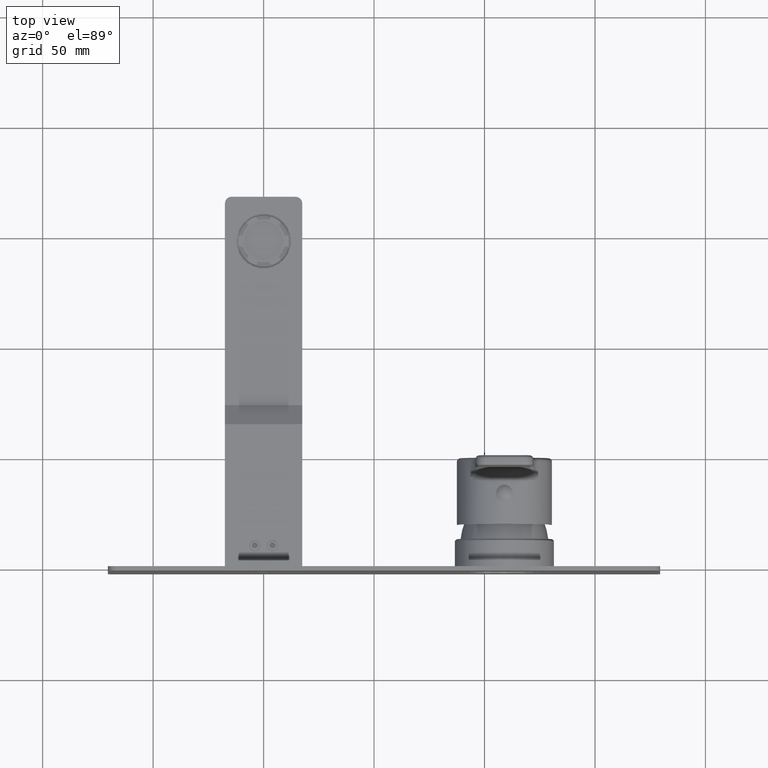
[diagram: clean part render]
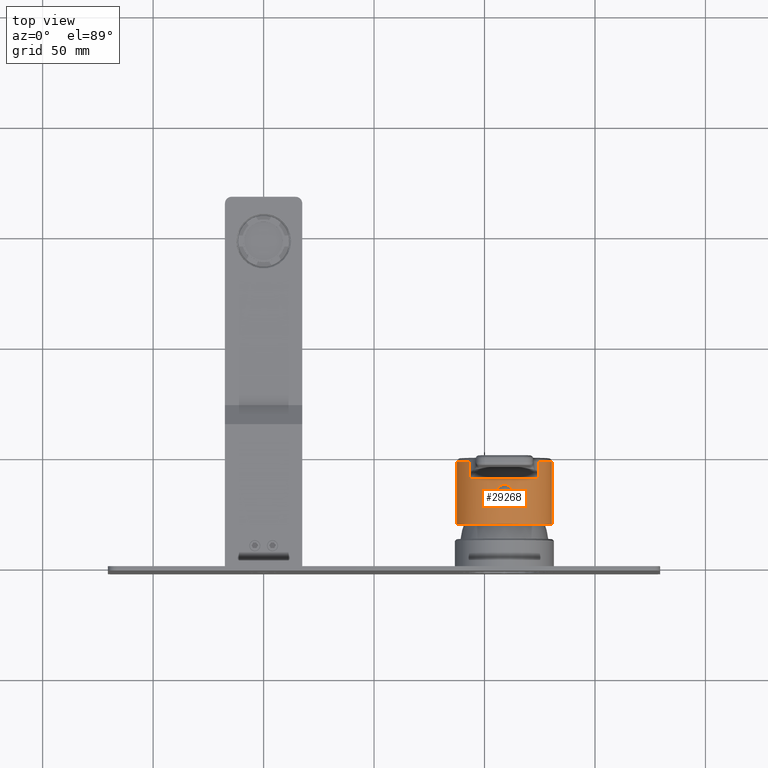
[diagram: same view with one face highlighted and labeled with its STEP entity id]
A machine part, top view. The second image highlights one B-rep face of the part: STEP entity #29268.
In plain terms, the highlighted cylindrical surface (partial cylindrical patch) has radius 21.5 mm, axis along (0, 1, 0).
Its self-contained STEP definition (entity closure, byte-faithful):
#8854=DIRECTION('',(-4.646886367898E-6,-9.999999999778E-1,4.776823971338E-6));
#8855=VECTOR('',#8854,8.030831221984E0);
#8856=CARTESIAN_POINT('',(1.246984500160E2,9.813083122271E1,1.469042925446E1));
#8857=LINE('',#8856,#8855);
#8858=CARTESIAN_POINT('',(1.090000000003E2,9.813083117058E1,0.E0));
#8859=DIRECTION('',(0.E0,-1.E0,0.E0));
#8860=DIRECTION('',(1.E0,0.E0,0.E0));
#8861=AXIS2_PLACEMENT_3D('',#8858,#8859,#8860);
#8863=DIRECTION('',(0.E0,1.E0,-2.343800675332E-13));
#8864=VECTOR('',#8863,2.853083117058E1);
#8865=CARTESIAN_POINT('',(8.750000000033E1,6.96E1,0.E0));
#8866=LINE('',#8865,#8864);
#8867=CARTESIAN_POINT('',(1.090000000003E2,9.813083117058E1,0.E0));
#8868=DIRECTION('',(0.E0,-1.E0,0.E0));
#8869=DIRECTION('',(-7.301625092202E-1,0.E0,6.832735251195E-1));
#8870=AXIS2_PLACEMENT_3D('',#8867,#8868,#8869);
#8872=DIRECTION('',(-5.163733500362E-6,9.999999999726E-1,-5.307672915251E-6));
#8873=VECTOR('',#8872,8.030831229958E0);
#8874=CARTESIAN_POINT('',(9.330158730318E1,9.010000000100E1,1.469046761645E1));
#8875=LINE('',#8874,#8873);
#8876=CARTESIAN_POINT('',(1.115617376918E2,8.46E1,2.134683817337E1));
#8877=CARTESIAN_POINT('',(1.115434005987E2,8.464697482255E1,2.134903872514E1));
#8878=CARTESIAN_POINT('',(1.115041964920E2,8.473979312399E1,2.135369581233E1));
#8879=CARTESIAN_POINT('',(1.114376792733E2,8.487587871210E1,2.136139936400E1));
#8880=CARTESIAN_POINT('',(1.113637888691E2,8.500806697644E1,2.136971054540E1));
#8881=CARTESIAN_POINT('',(1.112826299E2,8.513615335468E1,2.137854101773E1));
#8882=CARTESIAN_POINT('',(1.111945187589E2,8.525959452368E1,2.138777466434E1));
#8883=CARTESIAN_POINT('',(1.110996991642E2,8.537804429664E1,2.139730123749E1));
#8884=CARTESIAN_POINT('',(1.109984348707E2,8.549114650083E1,2.140700624364E1));
#8885=CARTESIAN_POINT('',(1.108911305985E2,8.559844989750E1,2.141676229496E1));
#8886=CARTESIAN_POINT('',(1.107780289075E2,8.569971213063E1,2.142645832134E1));
#8887=CARTESIAN_POINT('',(1.106595811658E2,8.579452877087E1,2.143596738617E1));
#8888=CARTESIAN_POINT('',(1.105361429784E2,8.588263677772E1,2.144517591360E1));
#8889=CARTESIAN_POINT('',(1.104080603943E2,8.596379269638E1,2.145397488518E1));
#8890=CARTESIAN_POINT('',(1.102758754006E2,8.603768092309E1,2.146224983611E1));
#8891=CARTESIAN_POINT('',(1.101397927859E2,8.610419661959E1,2.146991410492E1));
#8892=CARTESIAN_POINT('',(1.100469742967E2,8.614340080380E1,2.147454437680E1));
#8893=CARTESIAN_POINT('',(1.100000000003E2,8.616173769149E1,2.147673159491E1));
#8895=CARTESIAN_POINT('',(1.100000000003E2,8.616173769149E1,2.147673159491E1));
#8896=CARTESIAN_POINT('',(1.099545182989E2,8.617949192980E1,2.147884931479E1));
#8897=CARTESIAN_POINT('',(1.098627476228E2,8.621252975851E1,2.148283320158E1));
#8898=CARTESIAN_POINT('',(1.097223954497E2,8.625477000713E1,2.148801574560E1));
#8899=CARTESIAN_POINT('',(1.095801909599E2,8.628942243963E1,2.149232850949E1));
#8900=CARTESIAN_POINT('',(1.094367079627E2,8.631641260422E1,2.149572572083E1));
#8901=CARTESIAN_POINT('',(1.092917281829E2,8.633578787100E1,2.149818502795E1));
#8902=CARTESIAN_POINT('',(1.091459022404E2,8.634742129933E1,2.149966993773E1));
#8903=CARTESIAN_POINT('',(1.090486664802E2,8.635E1,2.15E1));
#8904=CARTESIAN_POINT('',(1.090000000003E2,8.635E1,2.15E1));
#8906=CARTESIAN_POINT('',(1.090000000003E2,8.635E1,2.15E1));
#8907=CARTESIAN_POINT('',(1.089513347756E2,8.635E1,2.15E1));
#8908=CARTESIAN_POINT('',(1.088541013656E2,8.634742150960E1,2.149966996459E1));
#8909=CARTESIAN_POINT('',(1.087082732555E2,8.633578798189E1,2.149818504210E1));
#8910=CARTESIAN_POINT('',(1.085633012518E2,8.631641393059E1,2.149572588921E1));
#8911=CARTESIAN_POINT('',(1.084198197004E2,8.628942489237E1,2.149232881578E1));
#8912=CARTESIAN_POINT('',(1.082776034727E2,8.625476982444E1,2.148801572223E1));
#8913=CARTESIAN_POINT('',(1.081372533475E2,8.621253002740E1,2.148283323462E1));
#8914=CARTESIAN_POINT('',(1.080454817698E2,8.617949195637E1,2.147884931796E1));
#8915=CARTESIAN_POINT('',(1.080000000003E2,8.616173769149E1,2.147673159491E1));
#8917=CARTESIAN_POINT('',(1.080000000003E2,8.616173769149E1,2.147673159491E1));
#8918=CARTESIAN_POINT('',(1.079530257038E2,8.614340080372E1,2.147454437679E1));
#8919=CARTESIAN_POINT('',(1.078602072143E2,8.610419661940E1,2.146991410490E1));
#8920=CARTESIAN_POINT('',(1.077241245997E2,8.603768092291E1,2.146224983609E1));
#8921=CARTESIAN_POINT('',(1.075919396064E2,8.596379269639E1,2.145397488518E1));
#8922=CARTESIAN_POINT('',(1.074638570216E2,8.588263677730E1,2.144517591356E1));
#8923=CARTESIAN_POINT('',(1.073404188348E2,8.579452877080E1,2.143596738616E1));
#8924=CARTESIAN_POINT('',(1.072219710928E2,8.569971213026E1,2.142645832130E1));
#8925=CARTESIAN_POINT('',(1.071088694019E2,8.559844989725E1,2.141676229494E1));
#8926=CARTESIAN_POINT('',(1.070015651298E2,8.549114650071E1,2.140700624363E1));
#8927=CARTESIAN_POINT('',(1.069003008360E2,8.537804429603E1,2.139730123744E1));
#8928=CARTESIAN_POINT('',(1.068054812415E2,8.525959452332E1,2.138777466431E1));
#8929=CARTESIAN_POINT('',(1.067173701003E2,8.513615335414E1,2.137854101769E1));
#8930=CARTESIAN_POINT('',(1.066362111312E2,8.500806697581E1,2.136971054536E1));
#8931=CARTESIAN_POINT('',(1.065623207271E2,8.487587871157E1,2.136139936397E1));
#8932=CARTESIAN_POINT('',(1.064958035086E2,8.473979312378E1,2.135369581232E1));
#8933=CARTESIAN_POINT('',(1.064565994019E2,8.464697482249E1,2.134903872514E1));
#8934=CARTESIAN_POINT('',(1.064382623088E2,8.46E1,2.134683817337E1));
#8936=CARTESIAN_POINT('',(1.064382623088E2,8.46E1,2.134683817337E1));
#8937=CARTESIAN_POINT('',(1.064204857766E2,8.455446118746E1,2.134470489198E1));
#8938=CARTESIAN_POINT('',(1.063874284015E2,8.446261923476E1,2.134069303650E1));
#8939=CARTESIAN_POINT('',(1.063452334728E2,8.432239624106E1,2.133548011697E1));
#8940=CARTESIAN_POINT('',(1.063105891149E2,8.418025603203E1,2.133113658384E1));
#8941=CARTESIAN_POINT('',(1.062835600556E2,8.403655049695E1,2.132770810543E1));
#8942=CARTESIAN_POINT('',(1.062642115836E2,8.389168105626E1,2.132523246507E1));
#8943=CARTESIAN_POINT('',(1.062525854341E2,8.374603447031E1,2.132373630945E1));
#8944=CARTESIAN_POINT('',(1.062487072839E2,8.359999999811E1,2.132323580015E1));
#8945=CARTESIAN_POINT('',(1.062525854321E2,8.345396555559E1,2.132373630920E1));
#8946=CARTESIAN_POINT('',(1.062642115908E2,8.330831885657E1,2.132523246600E1));
#8947=CARTESIAN_POINT('',(1.062835600779E2,8.316344936500E1,2.132770810827E1));
#8948=CARTESIAN_POINT('',(1.063105891379E2,8.301974386442E1,2.133113658674E1));
#8949=CARTESIAN_POINT('',(1.063452334939E2,8.287760368324E1,2.133548011960E1));
#8950=CARTESIAN_POINT('',(1.063874284152E2,8.273738072613E1,2.134069303817E1));
#8951=CARTESIAN_POINT('',(1.064204857819E2,8.264553879908E1,2.134470489261E1));
#8952=CARTESIAN_POINT('',(1.064382623088E2,8.26E1,2.134683817337E1));
#8954=CARTESIAN_POINT('',(1.064382623088E2,8.26E1,2.134683817337E1));
#8955=CARTESIAN_POINT('',(1.064565994019E2,8.255302517745E1,2.134903872514E1));
#8956=CARTESIAN_POINT('',(1.064958035086E2,8.246020687601E1,2.135369581233E1));
#8957=CARTESIAN_POINT('',(1.065623207273E2,8.232412128790E1,2.136139936400E1));
#8958=CARTESIAN_POINT('',(1.066362111316E2,8.219193302356E1,2.136971054540E1));
#8959=CARTESIAN_POINT('',(1.067173701007E2,8.206384664532E1,2.137854101773E1));
#8960=CARTESIAN_POINT('',(1.068054812417E2,8.194040547632E1,2.138777466434E1));
#8961=CARTESIAN_POINT('',(1.069003008365E2,8.182195570336E1,2.139730123749E1));
#8962=CARTESIAN_POINT('',(1.070015651299E2,8.170885349917E1,2.140700624364E1));
#8963=CARTESIAN_POINT('',(1.071088694021E2,8.160155010250E1,2.141676229496E1));
#8964=CARTESIAN_POINT('',(1.072219710932E2,8.150028786937E1,2.142645832134E1));
#8965=CARTESIAN_POINT('',(1.073404188349E2,8.140547122913E1,2.143596738617E1));
#8966=CARTESIAN_POINT('',(1.074638570222E2,8.131736322228E1,2.144517591360E1));
#8967=CARTESIAN_POINT('',(1.075919396064E2,8.123620730362E1,2.145397488518E1));
#8968=CARTESIAN_POINT('',(1.077241246E2,8.116231907691E1,2.146224983611E1));
#8969=CARTESIAN_POINT('',(1.078602072148E2,8.109580338041E1,2.146991410492E1));
#8970=CARTESIAN_POINT('',(1.079530257040E2,8.105659919620E1,2.147454437680E1));
#8971=CARTESIAN_POINT('',(1.080000000003E2,8.103826230851E1,2.147673159491E1));
#8973=CARTESIAN_POINT('',(1.080000000003E2,8.103826230851E1,2.147673159491E1));
#8974=CARTESIAN_POINT('',(1.080454816899E2,8.102050807485E1,2.147884931424E1));
#8975=CARTESIAN_POINT('',(1.081372523485E2,8.098747025142E1,2.148283320037E1));
#8976=CARTESIAN_POINT('',(1.082776045206E2,8.094523000100E1,2.148801574460E1));
#8977=CARTESIAN_POINT('',(1.084198090221E2,8.091057756412E1,2.149232850902E1));
#8978=CARTESIAN_POINT('',(1.085632920359E2,8.088358739575E1,2.149572572083E1));
#8979=CARTESIAN_POINT('',(1.087082718289E2,8.086421212787E1,2.149818502809E1));
#8980=CARTESIAN_POINT('',(1.088540977564E2,8.085257870106E1,2.149966993768E1));
#8981=CARTESIAN_POINT('',(1.089513335188E2,8.085E1,2.15E1));
#8982=CARTESIAN_POINT('',(1.090000000003E2,8.085E1,2.15E1));
#8984=CARTESIAN_POINT('',(1.090000000003E2,8.085E1,2.15E1));
#8985=CARTESIAN_POINT('',(1.090486659301E2,8.085E1,2.15E1));
#8986=CARTESIAN_POINT('',(1.091459004966E2,8.085257856492E1,2.149966995505E1));
#8987=CARTESIAN_POINT('',(1.092917296094E2,8.086421231179E1,2.149818500467E1));
#8988=CARTESIAN_POINT('',(1.094367017975E2,8.088358656544E1,2.149572582648E1));
#8989=CARTESIAN_POINT('',(1.095801826439E2,8.091057562727E1,2.149232875077E1));
#8990=CARTESIAN_POINT('',(1.097223981748E2,8.094523063669E1,2.148801566532E1));
#8991=CARTESIAN_POINT('',(1.098627475169E2,8.098747027382E1,2.148283319814E1));
#8992=CARTESIAN_POINT('',(1.099545185261E2,8.102050815891E1,2.147884930421E1));
#8993=CARTESIAN_POINT('',(1.100000000003E2,8.103826230851E1,2.147673159491E1));
#8995=CARTESIAN_POINT('',(1.100000000003E2,8.103826230851E1,2.147673159491E1));
#8996=CARTESIAN_POINT('',(1.100469742969E2,8.105659919628E1,2.147454437679E1));
#8997=CARTESIAN_POINT('',(1.101397927863E2,8.109580338060E1,2.146991410490E1));
#8998=CARTESIAN_POINT('',(1.102758754009E2,8.116231907709E1,2.146224983609E1));
#8999=CARTESIAN_POINT('',(1.104080603943E2,8.123620730361E1,2.145397488518E1));
#9000=CARTESIAN_POINT('',(1.105361429791E2,8.131736322270E1,2.144517591356E1));
#9001=CARTESIAN_POINT('',(1.106595811659E2,8.140547122920E1,2.143596738616E1));
#9002=CARTESIAN_POINT('',(1.107780289079E2,8.150028786974E1,2.142645832130E1));
#9003=CARTESIAN_POINT('',(1.108911305988E2,8.160155010275E1,2.141676229494E1));
#9004=CARTESIAN_POINT('',(1.109984348708E2,8.170885349929E1,2.140700624363E1));
#9005=CARTESIAN_POINT('',(1.110996991647E2,8.182195570397E1,2.139730123744E1));
#9006=CARTESIAN_POINT('',(1.111945187592E2,8.194040547668E1,2.138777466431E1));
#9007=CARTESIAN_POINT('',(1.112826299003E2,8.206384664586E1,2.137854101769E1));
#9008=CARTESIAN_POINT('',(1.113637888694E2,8.219193302419E1,2.136971054536E1));
#9009=CARTESIAN_POINT('',(1.114376792736E2,8.232412128843E1,2.136139936397E1));
#9010=CARTESIAN_POINT('',(1.115041964921E2,8.246020687622E1,2.135369581232E1));
#9011=CARTESIAN_POINT('',(1.115434005987E2,8.255302517751E1,2.134903872514E1));
#9012=CARTESIAN_POINT('',(1.115617376918E2,8.26E1,2.134683817337E1));
#9014=CARTESIAN_POINT('',(1.115617376918E2,8.26E1,2.134683817337E1));
#9015=CARTESIAN_POINT('',(1.115795142189E2,8.264553879940E1,2.134470489260E1));
#9016=CARTESIAN_POINT('',(1.116125715857E2,8.273738072677E1,2.134069303814E1));
#9017=CARTESIAN_POINT('',(1.116547665074E2,8.287760368556E1,2.133548011952E1));
#9018=CARTESIAN_POINT('',(1.116894108624E2,8.301974386315E1,2.133113658678E1));
#9019=CARTESIAN_POINT('',(1.117164399228E2,8.316344936519E1,2.132770810826E1));
#9020=CARTESIAN_POINT('',(1.117357884102E2,8.330831885958E1,2.132523246595E1));
#9021=CARTESIAN_POINT('',(1.117474145686E2,8.345396555725E1,2.132373630919E1));
#9022=CARTESIAN_POINT('',(1.117512927167E2,8.359999999787E1,2.132323580015E1));
#9023=CARTESIAN_POINT('',(1.117474145666E2,8.374603446940E1,2.132373630944E1));
#9024=CARTESIAN_POINT('',(1.117357884169E2,8.389168105794E1,2.132523246509E1));
#9025=CARTESIAN_POINT('',(1.117164399453E2,8.403655049497E1,2.132770810539E1));
#9026=CARTESIAN_POINT('',(1.116894108861E2,8.418025603072E1,2.133113658380E1));
#9027=CARTESIAN_POINT('',(1.116547665275E2,8.432239624271E1,2.133548011703E1));
#9028=CARTESIAN_POINT('',(1.116125715990E2,8.446261923490E1,2.134069303651E1));
#9029=CARTESIAN_POINT('',(1.115795142240E2,8.455446118757E1,2.134470489199E1));
#9030=CARTESIAN_POINT('',(1.115617376918E2,8.46E1,2.134683817337E1));
#9101=CARTESIAN_POINT('',(1.246984126976E2,9.010000000090E1,1.469046761633E1));
#9103=CARTESIAN_POINT('',(1.090000000003E2,9.01E1,0.E0));
#9104=DIRECTION('',(0.E0,-1.E0,0.E0));
#9105=DIRECTION('',(7.301587300519E-1,0.E0,6.832775636072E-1));
#9106=AXIS2_PLACEMENT_3D('',#9103,#9104,#9105);
#9157=CARTESIAN_POINT('',(9.330158730318E1,9.010000000100E1,1.469046761645E1));
#9629=DIRECTION('',(0.E0,1.E0,2.342578722937E-13));
#9630=VECTOR('',#9629,2.853083117058E1);
#9631=CARTESIAN_POINT('',(1.305000000003E2,6.96E1,1.222481478073E-14));
#9632=LINE('',#9631,#9630);
#9696=CARTESIAN_POINT('',(1.090000000003E2,6.96E1,0.E0));
#9697=DIRECTION('',(0.E0,1.E0,0.E0));
#9698=DIRECTION('',(-1.E0,0.E0,0.E0));
#9699=AXIS2_PLACEMENT_3D('',#9696,#9697,#9698);
#17100=CARTESIAN_POINT('',(8.750000000033E1,6.96E1,0.E0));
#17101=CARTESIAN_POINT('',(1.305000000003E2,6.96E1,1.485780539890E-14));
#17102=VERTEX_POINT('',#17100);
#17103=VERTEX_POINT('',#17101);
#17105=VERTEX_POINT('',#9101);
#17123=VERTEX_POINT('',#9157);
#17126=CARTESIAN_POINT('',(1.246984500160E2,9.813083122271E1,1.469042925446E1));
#17127=VERTEX_POINT('',#17126);
#17130=CARTESIAN_POINT('',(9.330154583411E1,9.813083123073E1,1.469042499143E1));
#17131=VERTEX_POINT('',#17130);
#17469=CARTESIAN_POINT('',(1.305000000003E2,9.813083117058E1,
1.311064510580E-14));
#17470=VERTEX_POINT('',#17469);
#17473=CARTESIAN_POINT('',(8.750000000033E1,9.813083117058E1,0.E0));
#17474=VERTEX_POINT('',#17473);
#17609=VERTEX_POINT('',#9014);
#17610=VERTEX_POINT('',#9030);
#17611=VERTEX_POINT('',#8973);
#17612=VERTEX_POINT('',#8982);
#17613=VERTEX_POINT('',#8993);
#17614=VERTEX_POINT('',#8936);
#17615=VERTEX_POINT('',#8952);
#17616=VERTEX_POINT('',#8895);
#17617=VERTEX_POINT('',#8904);
#17618=VERTEX_POINT('',#8915);
#29226=CARTESIAN_POINT('',(1.090000000003E2,6.96E1,0.E0));
#29227=DIRECTION('',(0.E0,1.E0,0.E0));
#29228=DIRECTION('',(1.E0,0.E0,0.E0));
#29229=AXIS2_PLACEMENT_3D('',#29226,#29227,#29228);
#29230=CYLINDRICAL_SURFACE('',#29229,2.15E1);
#29232=ORIENTED_EDGE('',*,*,#29231,.F.);
#29234=ORIENTED_EDGE('',*,*,#29233,.F.);
#29236=ORIENTED_EDGE('',*,*,#29235,.F.);
#29238=ORIENTED_EDGE('',*,*,#29237,.F.);
#29240=ORIENTED_EDGE('',*,*,#29239,.T.);
#29242=ORIENTED_EDGE('',*,*,#29241,.F.);
#29244=ORIENTED_EDGE('',*,*,#29243,.F.);
#29246=ORIENTED_EDGE('',*,*,#29245,.F.);
#29247=EDGE_LOOP('',(#29232,#29234,#29236,#29238,#29240,#29242,#29244,#29246));
#29248=FACE_OUTER_BOUND('',#29247,.F.);
#29249=ORIENTED_EDGE('',*,*,#28789,.T.);
#29251=ORIENTED_EDGE('',*,*,#29250,.T.);
#29253=ORIENTED_EDGE('',*,*,#29252,.T.);
#29255=ORIENTED_EDGE('',*,*,#29254,.T.);
#29257=ORIENTED_EDGE('',*,*,#29256,.T.);
#29259=ORIENTED_EDGE('',*,*,#29258,.T.);
#29261=ORIENTED_EDGE('',*,*,#29260,.T.);
#29263=ORIENTED_EDGE('',*,*,#29262,.T.);
#29264=ORIENTED_EDGE('',*,*,#28967,.T.);
#29265=ORIENTED_EDGE('',*,*,#29211,.T.);
#29266=EDGE_LOOP('',(#29249,#29251,#29253,#29255,#29257,#29259,#29261,#29263,
#29264,#29265));
#29267=FACE_BOUND('',#29266,.F.);
#29268=ADVANCED_FACE('',(#29248,#29267),#29230,.T.);
#8862=CIRCLE('',#8861,2.15E1);
#8871=CIRCLE('',#8870,2.15E1);
#8894=B_SPLINE_CURVE_WITH_KNOTS('',3,(#8876,#8877,#8878,#8879,#8880,#8881,#8882,
#8883,#8884,#8885,#8886,#8887,#8888,#8889,#8890,#8891,#8892,#8893),
.UNSPECIFIED.,.F.,.F.,(4,1,1,1,1,1,1,1,1,1,1,1,1,1,1,4),(0.E0,6.666666666667E-2,
1.333333333333E-1,2.E-1,2.666666666667E-1,3.333333333333E-1,4.E-1,
4.666666666667E-1,5.333333333333E-1,6.E-1,6.666666666667E-1,7.333333333333E-1,
8.E-1,8.666666666667E-1,9.333333333333E-1,1.E0),.UNSPECIFIED.);
#8905=B_SPLINE_CURVE_WITH_KNOTS('',3,(#8895,#8896,#8897,#8898,#8899,#8900,#8901,
#8902,#8903,#8904),.UNSPECIFIED.,.F.,.F.,(4,1,1,1,1,1,1,4),(0.E0,
1.428571428571E-1,2.857142857143E-1,4.285714285714E-1,5.714285714286E-1,
7.142857142857E-1,8.571428571429E-1,1.E0),.UNSPECIFIED.);
#8916=B_SPLINE_CURVE_WITH_KNOTS('',3,(#8906,#8907,#8908,#8909,#8910,#8911,#8912,
#8913,#8914,#8915),.UNSPECIFIED.,.F.,.F.,(4,1,1,1,1,1,1,4),(0.E0,
1.428571428571E-1,2.857142857143E-1,4.285714285714E-1,5.714285714286E-1,
7.142857142857E-1,8.571428571429E-1,1.E0),.UNSPECIFIED.);
#8935=B_SPLINE_CURVE_WITH_KNOTS('',3,(#8917,#8918,#8919,#8920,#8921,#8922,#8923,
#8924,#8925,#8926,#8927,#8928,#8929,#8930,#8931,#8932,#8933,#8934),
.UNSPECIFIED.,.F.,.F.,(4,1,1,1,1,1,1,1,1,1,1,1,1,1,1,4),(0.E0,6.666666666667E-2,
1.333333333333E-1,2.E-1,2.666666666667E-1,3.333333333333E-1,4.E-1,
4.666666666667E-1,5.333333333333E-1,6.E-1,6.666666666667E-1,7.333333333333E-1,
8.E-1,8.666666666667E-1,9.333333333333E-1,1.E0),.UNSPECIFIED.);
#8953=B_SPLINE_CURVE_WITH_KNOTS('',3,(#8936,#8937,#8938,#8939,#8940,#8941,#8942,
#8943,#8944,#8945,#8946,#8947,#8948,#8949,#8950,#8951,#8952),.UNSPECIFIED.,.F.,
.F.,(4,1,1,1,1,1,1,1,1,1,1,1,1,1,4),(0.E0,7.142857142857E-2,1.428571428571E-1,
2.142857142857E-1,2.857142857143E-1,3.571428571429E-1,4.285714285714E-1,5.E-1,
5.714285714286E-1,6.428571428571E-1,7.142857142857E-1,7.857142857143E-1,
8.571428571429E-1,9.285714285714E-1,1.E0),.UNSPECIFIED.);
#8972=B_SPLINE_CURVE_WITH_KNOTS('',3,(#8954,#8955,#8956,#8957,#8958,#8959,#8960,
#8961,#8962,#8963,#8964,#8965,#8966,#8967,#8968,#8969,#8970,#8971),
.UNSPECIFIED.,.F.,.F.,(4,1,1,1,1,1,1,1,1,1,1,1,1,1,1,4),(0.E0,6.666666666667E-2,
1.333333333333E-1,2.E-1,2.666666666667E-1,3.333333333333E-1,4.E-1,
4.666666666667E-1,5.333333333333E-1,6.E-1,6.666666666667E-1,7.333333333333E-1,
8.E-1,8.666666666667E-1,9.333333333333E-1,1.E0),.UNSPECIFIED.);
#8983=B_SPLINE_CURVE_WITH_KNOTS('',3,(#8973,#8974,#8975,#8976,#8977,#8978,#8979,
#8980,#8981,#8982),.UNSPECIFIED.,.F.,.F.,(4,1,1,1,1,1,1,4),(0.E0,
1.428571428571E-1,2.857142857143E-1,4.285714285714E-1,5.714285714286E-1,
7.142857142857E-1,8.571428571429E-1,1.E0),.UNSPECIFIED.);
#8994=B_SPLINE_CURVE_WITH_KNOTS('',3,(#8984,#8985,#8986,#8987,#8988,#8989,#8990,
#8991,#8992,#8993),.UNSPECIFIED.,.F.,.F.,(4,1,1,1,1,1,1,4),(0.E0,
1.428571428571E-1,2.857142857143E-1,4.285714285714E-1,5.714285714286E-1,
7.142857142857E-1,8.571428571429E-1,1.E0),.UNSPECIFIED.);
#9013=B_SPLINE_CURVE_WITH_KNOTS('',3,(#8995,#8996,#8997,#8998,#8999,#9000,#9001,
#9002,#9003,#9004,#9005,#9006,#9007,#9008,#9009,#9010,#9011,#9012),
.UNSPECIFIED.,.F.,.F.,(4,1,1,1,1,1,1,1,1,1,1,1,1,1,1,4),(0.E0,6.666666666667E-2,
1.333333333333E-1,2.E-1,2.666666666667E-1,3.333333333333E-1,4.E-1,
4.666666666667E-1,5.333333333333E-1,6.E-1,6.666666666667E-1,7.333333333333E-1,
8.E-1,8.666666666667E-1,9.333333333333E-1,1.E0),.UNSPECIFIED.);
#9031=B_SPLINE_CURVE_WITH_KNOTS('',3,(#9014,#9015,#9016,#9017,#9018,#9019,#9020,
#9021,#9022,#9023,#9024,#9025,#9026,#9027,#9028,#9029,#9030),.UNSPECIFIED.,.F.,
.F.,(4,1,1,1,1,1,1,1,1,1,1,1,1,1,4),(0.E0,7.142857142857E-2,1.428571428571E-1,
2.142857142857E-1,2.857142857143E-1,3.571428571429E-1,4.285714285714E-1,5.E-1,
5.714285714286E-1,6.428571428571E-1,7.142857142857E-1,7.857142857143E-1,
8.571428571429E-1,9.285714285714E-1,1.E0),.UNSPECIFIED.);
#9107=CIRCLE('',#9106,2.15E1);
#9700=CIRCLE('',#9699,2.15E1);
#28789=EDGE_CURVE('',#17610,#17616,#8894,.T.);
#28967=EDGE_CURVE('',#17613,#17609,#9013,.T.);
#29211=EDGE_CURVE('',#17609,#17610,#9031,.T.);
#29231=EDGE_CURVE('',#17127,#17105,#8857,.T.);
#29233=EDGE_CURVE('',#17470,#17127,#8862,.T.);
#29235=EDGE_CURVE('',#17103,#17470,#9632,.T.);
#29237=EDGE_CURVE('',#17102,#17103,#9700,.T.);
#29239=EDGE_CURVE('',#17102,#17474,#8866,.T.);
#29241=EDGE_CURVE('',#17131,#17474,#8871,.T.);
#29243=EDGE_CURVE('',#17123,#17131,#8875,.T.);
#29245=EDGE_CURVE('',#17105,#17123,#9107,.T.);
#29250=EDGE_CURVE('',#17616,#17617,#8905,.T.);
#29252=EDGE_CURVE('',#17617,#17618,#8916,.T.);
#29254=EDGE_CURVE('',#17618,#17614,#8935,.T.);
#29256=EDGE_CURVE('',#17614,#17615,#8953,.T.);
#29258=EDGE_CURVE('',#17615,#17611,#8972,.T.);
#29260=EDGE_CURVE('',#17611,#17612,#8983,.T.);
#29262=EDGE_CURVE('',#17612,#17613,#8994,.T.);